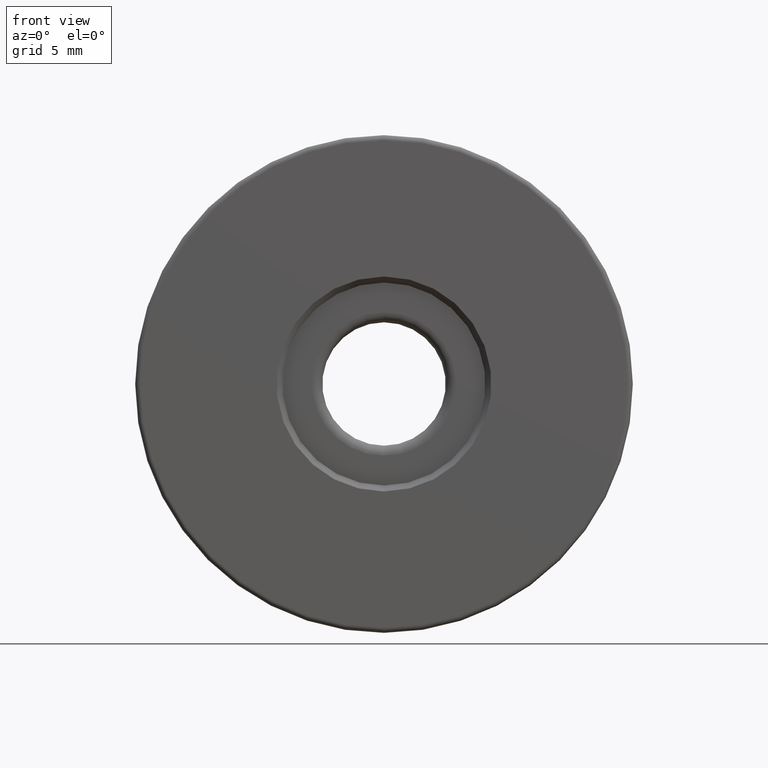
[diagram: clean part render]
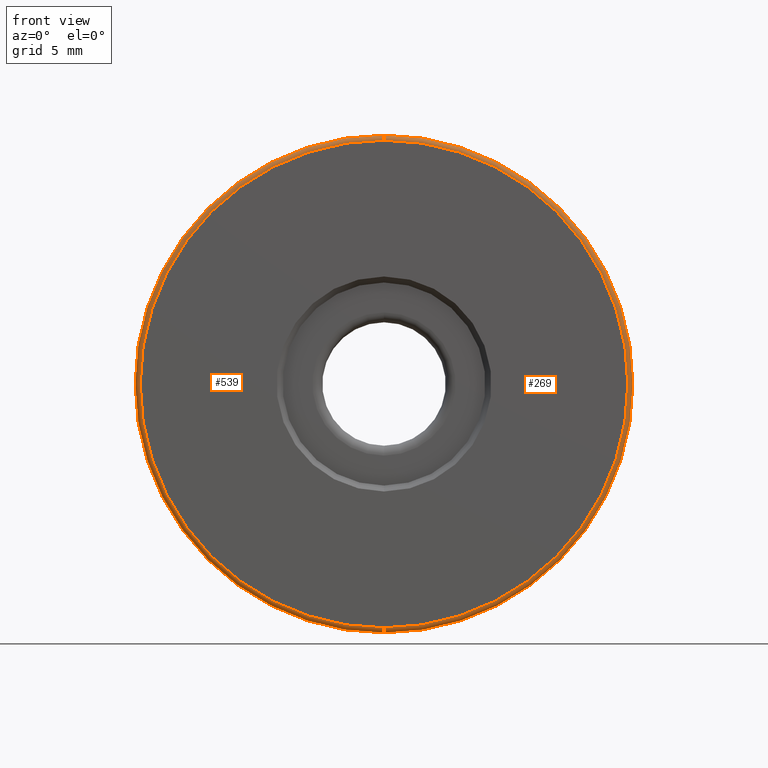
[diagram: same view with one multi-face feature highlighted, each face labeled with its STEP entity id]
A machine part, front view. The highlighted faces form ONE feature: a constant-radius fillet chain: 2 tangent blend faces with common blend radius 0.25 mm. The faces share edges in the B-rep.
Their STEP definitions:
[1] entity #539 (Torus):
#16 = CARTESIAN_POINT ( 'NONE',  ( -4.682026255059964726, -6.344975976998274980, 12.50000000000000000 ) ) ;
#21 = CARTESIAN_POINT ( 'NONE',  ( -4.682026255059964726, -6.344975976998274980, 25.00000000000000000 ) ) ;
#28 = DIRECTION ( 'NONE',  ( -1.000000000000000000, 0.0000000000000000000, 0.0000000000000000000 ) ) ;
#29 = ORIENTED_EDGE ( 'NONE', *, *, #302, .F. ) ;
#37 = CARTESIAN_POINT ( 'NONE',  ( -4.682026255059962949, -6.344975976998274980, 37.50000000000000711 ) ) ;
#39 = EDGE_CURVE ( 'NONE', #326, #51, #205, .T. ) ;
#46 = TOROIDAL_SURFACE ( 'NONE', #555, 12.25000000000000000, 0.2500000000000000000 ) ;
#51 = VERTEX_POINT ( 'NONE', #37 ) ;
#55 = VERTEX_POINT ( 'NONE', #537 ) ;
#56 = CIRCLE ( 'NONE', #224, 0.2500000000000002220 ) ;
#70 = CARTESIAN_POINT ( 'NONE',  ( -4.682026255059964726, -6.344975976998274980, 25.00000000000000000 ) ) ;
#82 = EDGE_LOOP ( 'NONE', ( #159, #29, #472, #518 ) ) ;
#87 = VERTEX_POINT ( 'NONE', #16 ) ;
#111 = DIRECTION ( 'NONE',  ( 0.0000000000000000000, 0.0000000000000000000, -1.000000000000000000 ) ) ;
#159 = ORIENTED_EDGE ( 'NONE', *, *, #228, .F. ) ;
#167 = DIRECTION ( 'NONE',  ( 0.0000000000000000000, 0.0000000000000000000, 1.000000000000000000 ) ) ;
#196 = AXIS2_PLACEMENT_3D ( 'NONE', #70, #494, #346 ) ;
#205 = CIRCLE ( 'NONE', #534, 0.2500000000000002220 ) ;
#224 = AXIS2_PLACEMENT_3D ( 'NONE', #541, #249, #111 ) ;
#228 = EDGE_CURVE ( 'NONE', #55, #87, #56, .T. ) ;
#249 = DIRECTION ( 'NONE',  ( 1.000000000000000000, -0.0000000000000000000, 1.224646799147353207E-16 ) ) ;
#262 = FACE_OUTER_BOUND ( 'NONE', #82, .T. ) ;
#298 = DIRECTION ( 'NONE',  ( 0.0000000000000000000, 1.000000000000000000, 0.0000000000000000000 ) ) ;
#302 = EDGE_CURVE ( 'NONE', #326, #55, #405, .T. ) ;
#305 = CIRCLE ( 'NONE', #196, 12.50000000000000355 ) ;
#326 = VERTEX_POINT ( 'NONE', #435 ) ;
#346 = DIRECTION ( 'NONE',  ( 0.0000000000000000000, 0.0000000000000000000, 1.000000000000000000 ) ) ;
#405 = CIRCLE ( 'NONE', #488, 12.25000000000000355 ) ;
#409 = CARTESIAN_POINT ( 'NONE',  ( -4.682026255059964726, -6.594975976998274980, 25.00000000000000000 ) ) ;
#435 = CARTESIAN_POINT ( 'NONE',  ( -4.682026255059964726, -6.594975976998274980, 37.25000000000000711 ) ) ;
#442 = DIRECTION ( 'NONE',  ( 0.0000000000000000000, 0.0000000000000000000, 1.000000000000000000 ) ) ;
#455 = EDGE_CURVE ( 'NONE', #87, #51, #305, .T. ) ;
#460 = CARTESIAN_POINT ( 'NONE',  ( -4.682026255059964726, -6.344975976998274980, 37.25000000000000711 ) ) ;
#472 = ORIENTED_EDGE ( 'NONE', *, *, #39, .T. ) ;
#488 = AXIS2_PLACEMENT_3D ( 'NONE', #409, #592, #167 ) ;
#494 = DIRECTION ( 'NONE',  ( 0.0000000000000000000, 1.000000000000000000, 0.0000000000000000000 ) ) ;
#518 = ORIENTED_EDGE ( 'NONE', *, *, #455, .F. ) ;
#521 = DIRECTION ( 'NONE',  ( 0.0000000000000000000, 0.0000000000000000000, 1.000000000000000000 ) ) ;
#534 = AXIS2_PLACEMENT_3D ( 'NONE', #460, #28, #521 ) ;
#537 = CARTESIAN_POINT ( 'NONE',  ( -4.682026255059962949, -6.594975976998274980, 12.75000000000000178 ) ) ;
#539 = ADVANCED_FACE ( 'NONE', ( #262 ), #46, .T. ) ;
#541 = CARTESIAN_POINT ( 'NONE',  ( -4.682026255059962949, -6.344975976998274980, 12.75000000000000178 ) ) ;
#555 = AXIS2_PLACEMENT_3D ( 'NONE', #21, #298, #442 ) ;
#592 = DIRECTION ( 'NONE',  ( -0.0000000000000000000, -1.000000000000000000, -0.0000000000000000000 ) ) ;
[2] entity #269 (Torus):
#2 = EDGE_CURVE ( 'NONE', #55, #326, #376, .T. ) ;
#10 = EDGE_CURVE ( 'NONE', #51, #87, #102, .T. ) ;
#16 = CARTESIAN_POINT ( 'NONE',  ( -4.682026255059964726, -6.344975976998274980, 12.50000000000000000 ) ) ;
#28 = DIRECTION ( 'NONE',  ( -1.000000000000000000, 0.0000000000000000000, 0.0000000000000000000 ) ) ;
#37 = CARTESIAN_POINT ( 'NONE',  ( -4.682026255059962949, -6.344975976998274980, 37.50000000000000711 ) ) ;
#39 = EDGE_CURVE ( 'NONE', #326, #51, #205, .T. ) ;
#51 = VERTEX_POINT ( 'NONE', #37 ) ;
#55 = VERTEX_POINT ( 'NONE', #537 ) ;
#56 = CIRCLE ( 'NONE', #224, 0.2500000000000002220 ) ;
#79 = DIRECTION ( 'NONE',  ( 0.0000000000000000000, 0.0000000000000000000, 1.000000000000000000 ) ) ;
#87 = VERTEX_POINT ( 'NONE', #16 ) ;
#96 = ORIENTED_EDGE ( 'NONE', *, *, #228, .T. ) ;
#102 = CIRCLE ( 'NONE', #554, 12.50000000000000355 ) ;
#106 = FACE_OUTER_BOUND ( 'NONE', #464, .T. ) ;
#111 = DIRECTION ( 'NONE',  ( 0.0000000000000000000, 0.0000000000000000000, -1.000000000000000000 ) ) ;
#125 = AXIS2_PLACEMENT_3D ( 'NONE', #178, #237, #189 ) ;
#178 = CARTESIAN_POINT ( 'NONE',  ( -4.682026255059964726, -6.594975976998274980, 25.00000000000000000 ) ) ;
#189 = DIRECTION ( 'NONE',  ( 0.0000000000000000000, 0.0000000000000000000, 1.000000000000000000 ) ) ;
#205 = CIRCLE ( 'NONE', #534, 0.2500000000000002220 ) ;
#224 = AXIS2_PLACEMENT_3D ( 'NONE', #541, #249, #111 ) ;
#228 = EDGE_CURVE ( 'NONE', #55, #87, #56, .T. ) ;
#237 = DIRECTION ( 'NONE',  ( -0.0000000000000000000, -1.000000000000000000, -0.0000000000000000000 ) ) ;
#243 = AXIS2_PLACEMENT_3D ( 'NONE', #401, #351, #544 ) ;
#249 = DIRECTION ( 'NONE',  ( 1.000000000000000000, -0.0000000000000000000, 1.224646799147353207E-16 ) ) ;
#269 = ADVANCED_FACE ( 'NONE', ( #106 ), #572, .T. ) ;
#326 = VERTEX_POINT ( 'NONE', #435 ) ;
#329 = ORIENTED_EDGE ( 'NONE', *, *, #2, .F. ) ;
#351 = DIRECTION ( 'NONE',  ( 0.0000000000000000000, 1.000000000000000000, 0.0000000000000000000 ) ) ;
#365 = CARTESIAN_POINT ( 'NONE',  ( -4.682026255059964726, -6.344975976998274980, 25.00000000000000000 ) ) ;
#369 = DIRECTION ( 'NONE',  ( 0.0000000000000000000, 1.000000000000000000, 0.0000000000000000000 ) ) ;
#376 = CIRCLE ( 'NONE', #125, 12.25000000000000355 ) ;
#385 = ORIENTED_EDGE ( 'NONE', *, *, #39, .F. ) ;
#401 = CARTESIAN_POINT ( 'NONE',  ( -4.682026255059964726, -6.344975976998274980, 25.00000000000000000 ) ) ;
#435 = CARTESIAN_POINT ( 'NONE',  ( -4.682026255059964726, -6.594975976998274980, 37.25000000000000711 ) ) ;
#460 = CARTESIAN_POINT ( 'NONE',  ( -4.682026255059964726, -6.344975976998274980, 37.25000000000000711 ) ) ;
#464 = EDGE_LOOP ( 'NONE', ( #329, #96, #562, #385 ) ) ;
#521 = DIRECTION ( 'NONE',  ( 0.0000000000000000000, 0.0000000000000000000, 1.000000000000000000 ) ) ;
#534 = AXIS2_PLACEMENT_3D ( 'NONE', #460, #28, #521 ) ;
#537 = CARTESIAN_POINT ( 'NONE',  ( -4.682026255059962949, -6.594975976998274980, 12.75000000000000178 ) ) ;
#541 = CARTESIAN_POINT ( 'NONE',  ( -4.682026255059962949, -6.344975976998274980, 12.75000000000000178 ) ) ;
#544 = DIRECTION ( 'NONE',  ( 0.0000000000000000000, 0.0000000000000000000, 1.000000000000000000 ) ) ;
#554 = AXIS2_PLACEMENT_3D ( 'NONE', #365, #369, #79 ) ;
#562 = ORIENTED_EDGE ( 'NONE', *, *, #10, .F. ) ;
#572 = TOROIDAL_SURFACE ( 'NONE', #243, 12.25000000000000000, 0.2500000000000000000 ) ;